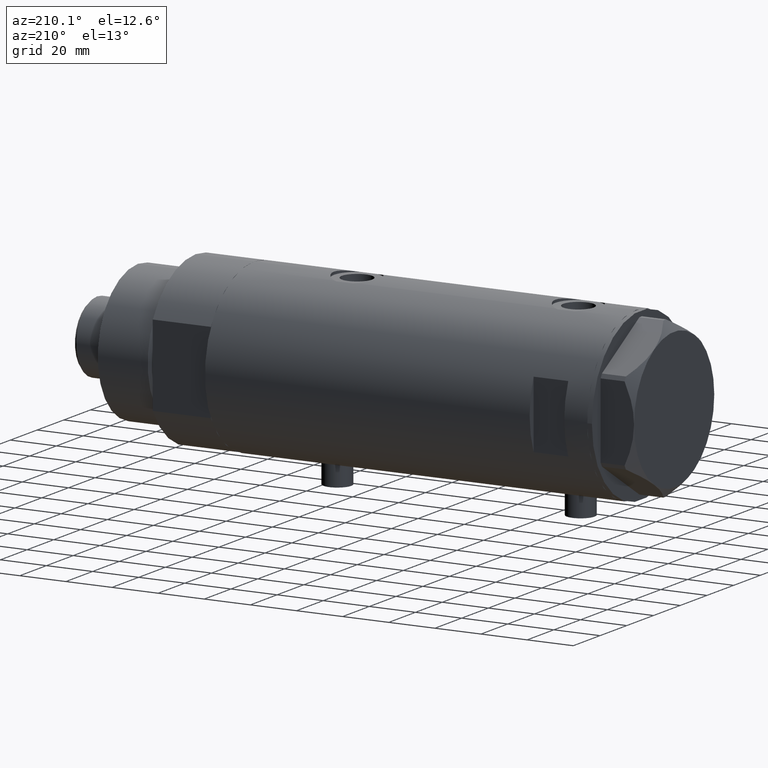
[diagram: clean part render]
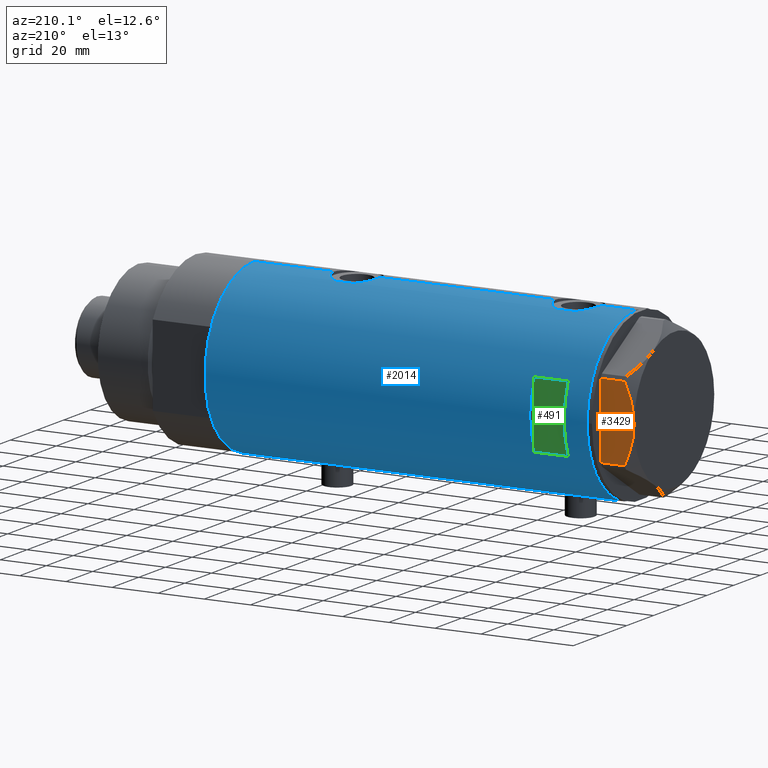
[diagram: same view with three faces highlighted in distinct colors, each labeled with its STEP entity id]
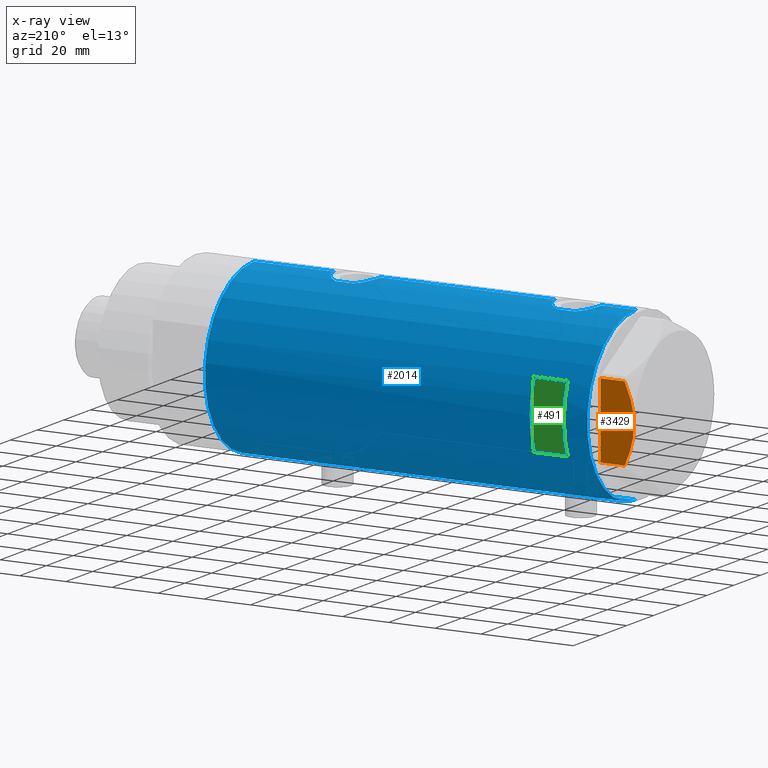
[diagram: x-ray of the same camera — body ghosted, the three highlighted faces saturated]
A machine part, auxiliary view with three faces highlighted in distinct colors.
The next image is the same camera in x-ray (body ghosted, the three faces saturated) — at least one of them is partly hidden behind the body in this view.
Their STEP definitions:

[orange] entity #3429 — the highlighted planar face has unit normal (0, -1, -0).
#36 = EDGE_LOOP ( 'NONE', ( #3139, #1048, #4568, #2104, #1712 ) ) ;
#46 = CARTESIAN_POINT ( 'NONE',  ( 30.00000000000000355, -17.32050807568877460, 0.000000000000000000 ) ) ;
#49 = CARTESIAN_POINT ( 'NONE',  ( 29.99999999999998579, 9.671229349009047738, 13.00645148086949554 ) ) ;
#133 = CARTESIAN_POINT ( 'NONE',  ( 29.99999999999999289, 13.63320717147166761, 11.55272916346385692 ) ) ;
#153 = B_SPLINE_CURVE_WITH_KNOTS ( 'NONE', 3,
 ( #1748, #2171, #2479, #1329, #3233, #2453, #4313, #2148, #1014, #2504 ),
 .UNSPECIFIED., .F., .F.,
 ( 4, 2, 2, 2, 4 ),
 ( 0.04501738275285961655, 0.04922240792374714402, 0.05132492050919090776, 0.05342743309463467843, 0.06183748343640974032 ),
 .UNSPECIFIED. ) ;
#225 = FACE_OUTER_BOUND ( 'NONE', #36, .T. ) ;
#272 = CARTESIAN_POINT ( 'NONE',  ( 30.00000000000000000, 15.56759648729806145, 10.70591879357994003 ) ) ;
#399 = B_SPLINE_CURVE_WITH_KNOTS ( 'NONE', 3,
 ( #2719, #4159, #4179, #1939, #3459, #4533, #1246, #49, #1562, #3053, #133, #4142, #272, #599 ),
 .UNSPECIFIED., .F., .F.,
 ( 4, 2, 2, 2, 2, 2, 4 ),
 ( 0.06183748343640974032, 0.06393495742991756048, 0.06603243142342538063, 0.07022737941044103482, 0.07442232739745667514, 0.07651980139096450917, 0.07861727538447232932 ),
 .UNSPECIFIED. ) ;
#517 = CARTESIAN_POINT ( 'NONE',  ( 29.99999999999999289, 16.20050807568875584, 14.50000000000000000 ) ) ;
#599 = CARTESIAN_POINT ( 'NONE',  ( 29.99999999999999289, 16.20050807568875229, 10.40518423703605322 ) ) ;
#962 = CARTESIAN_POINT ( 'NONE',  ( 29.99999999999999289, 16.20050807568875584, 0.000000000000000000 ) ) ;
#998 = CARTESIAN_POINT ( 'NONE',  ( 30.00000000000000355, -16.20050807568876294, 14.50000000000000000 ) ) ;
#1001 = EDGE_CURVE ( 'NONE', #2081, #1033, #1538, .T. ) ;
#1014 = CARTESIAN_POINT ( 'NONE',  ( 30.00000000000000000, -2.830925467268480933, 14.50000000000000355 ) ) ;
#1033 = VERTEX_POINT ( 'NONE', #1985 ) ;
#1037 = EDGE_CURVE ( 'NONE', #3299, #1033, #399, .T. ) ;
#1048 = ORIENTED_EDGE ( 'NONE', *, *, #4134, .T. ) ;
#1246 = CARTESIAN_POINT ( 'NONE',  ( 29.99999999999999645, 6.973771051792334141, 13.72753822183687866 ) ) ;
#1329 = CARTESIAN_POINT ( 'NONE',  ( 29.99999999999999645, -11.66725319103953495, 12.31690447555093115 ) ) ;
#1538 = LINE ( 'NONE', #517, #4261 ) ;
#1562 = CARTESIAN_POINT ( 'NONE',  ( 29.99999999999998579, 11.00230860792645871, 12.56933207488872206 ) ) ;
#1696 = DIRECTION ( 'NONE',  ( -1.000000000000000000, -3.004629197474318556E-16, 0.000000000000000000 ) ) ;
#1712 = ORIENTED_EDGE ( 'NONE', *, *, #1037, .F. ) ;
#1748 = CARTESIAN_POINT ( 'NONE',  ( 30.00000000000000355, -16.20050807568876650, 10.40518423703603368 ) ) ;
#1827 = VERTEX_POINT ( 'NONE', #3179 ) ;
#1939 = CARTESIAN_POINT ( 'NONE',  ( 29.99999999999998579, 2.827567415490793934, 14.37523681947611287 ) ) ;
#1985 = CARTESIAN_POINT ( 'NONE',  ( 29.99999999999999289, 16.20050807568875229, 10.40518423703605322 ) ) ;
#2009 = DIRECTION ( 'NONE',  ( 0.000000000000000000, 0.000000000000000000, 1.000000000000000000 ) ) ;
#2069 = CARTESIAN_POINT ( 'NONE',  ( 30.00000000000000355, -17.32050807568877460, 14.50000000000000000 ) ) ;
#2081 = VERTEX_POINT ( 'NONE', #962 ) ;
#2104 = ORIENTED_EDGE ( 'NONE', *, *, #1001, .T. ) ;
#2109 = EDGE_CURVE ( 'NONE', #4161, #3299, #153, .T. ) ;
#2148 = CARTESIAN_POINT ( 'NONE',  ( 30.00000000000000000, -5.593935073701695515, 14.09487059093540751 ) ) ;
#2171 = CARTESIAN_POINT ( 'NONE',  ( 29.99999999999999645, -14.93680064777130845, 11.00564802993686619 ) ) ;
#2453 = CARTESIAN_POINT ( 'NONE',  ( 29.99999999999999289, -9.655259153795981319, 12.99093232113973251 ) ) ;
#2479 = CARTESIAN_POINT ( 'NONE',  ( 30.00000000000000355, -13.64854889245357761, 11.56384586935411107 ) ) ;
#2504 = CARTESIAN_POINT ( 'NONE',  ( 30.00000000000000000, 9.013887592422954582E-15, 14.50000000000000000 ) ) ;
#2671 = LINE ( 'NONE', #46, #4122 ) ;
#2719 = CARTESIAN_POINT ( 'NONE',  ( 30.00000000000000000, 9.013887592422954582E-15, 14.50000000000000000 ) ) ;
#3051 = DIRECTION ( 'NONE',  ( -3.004629197474318063E-16, 1.000000000000000000, 0.000000000000000000 ) ) ;
#3053 = CARTESIAN_POINT ( 'NONE',  ( 29.99999999999999289, 12.97715359595205520, 11.81918444541430979 ) ) ;
#3058 = AXIS2_PLACEMENT_3D ( 'NONE', #2069, #1696, #4541 ) ;
#3139 = ORIENTED_EDGE ( 'NONE', *, *, #2109, .F. ) ;
#3179 = CARTESIAN_POINT ( 'NONE',  ( 30.00000000000000355, -16.20050807568876294, 0.000000000000000000 ) ) ;
#3233 = CARTESIAN_POINT ( 'NONE',  ( 30.00000000000000355, -10.99748736931233672, 12.55407623651775140 ) ) ;
#3240 = LINE ( 'NONE', #998, #3367 ) ;
#3299 = VERTEX_POINT ( 'NONE', #4148 ) ;
#3367 = VECTOR ( 'NONE', #3598, 1000.000000000000000 ) ;
#3429 = ADVANCED_FACE ( 'NONE', ( #225 ), #4587, .F. ) ;
#3459 = CARTESIAN_POINT ( 'NONE',  ( 29.99999999999999645, 3.526431665117132574, 14.30125973663612982 ) ) ;
#3598 = DIRECTION ( 'NONE',  ( 0.000000000000000000, 0.000000000000000000, -1.000000000000000000 ) ) ;
#4001 = CARTESIAN_POINT ( 'NONE',  ( 30.00000000000000355, -16.20050807568876650, 10.40518423703603368 ) ) ;
#4016 = EDGE_CURVE ( 'NONE', #1827, #2081, #2671, .T. ) ;
#4122 = VECTOR ( 'NONE', #3051, 1000.000000000000000 ) ;
#4134 = EDGE_CURVE ( 'NONE', #4161, #1827, #3240, .T. ) ;
#4142 = CARTESIAN_POINT ( 'NONE',  ( 29.99999999999999645, 14.92797448277035066, 10.99622797424085796 ) ) ;
#4148 = CARTESIAN_POINT ( 'NONE',  ( 30.00000000000000000, 9.013887592422954582E-15, 14.50000000000000000 ) ) ;
#4159 = CARTESIAN_POINT ( 'NONE',  ( 29.99999999999999645, 0.7060353153488403422, 14.50000000000000355 ) ) ;
#4161 = VERTEX_POINT ( 'NONE', #4001 ) ;
#4179 = CARTESIAN_POINT ( 'NONE',  ( 30.00000000000000000, 1.418661615092703387, 14.47469700449902952 ) ) ;
#4261 = VECTOR ( 'NONE', #2009, 1000.000000000000000 ) ;
#4313 = CARTESIAN_POINT ( 'NONE',  ( 29.99999999999999645, -8.981118657900115210, 13.19130745470828892 ) ) ;
#4533 = CARTESIAN_POINT ( 'NONE',  ( 29.99999999999998934, 5.607365453019633961, 14.01139032121648320 ) ) ;
#4541 = DIRECTION ( 'NONE',  ( 3.004629197474318556E-16, -1.000000000000000000, 0.000000000000000000 ) ) ;
#4568 = ORIENTED_EDGE ( 'NONE', *, *, #4016, .T. ) ;
#4587 = PLANE ( 'NONE',  #3058 ) ;

[blue] entity #2014 — the highlighted cylindrical surface (partial cylindrical patch) has radius 36.5 mm, axis along (-1, -0, 0).
#3 = VERTEX_POINT ( 'NONE', #4292 ) ;
#15 = CARTESIAN_POINT ( 'NONE',  ( -36.39522946636254375, 2.769519034821240844, 53.29336076268729272 ) ) ;
#20 = CARTESIAN_POINT ( 'NONE',  ( 35.40502660484482789, 8.876998817796915020, 53.26901275928763368 ) ) ;
#73 = CARTESIAN_POINT ( 'NONE',  ( 14.49137674618942917, 33.50000000000000000, 57.89999999999999147 ) ) ;
#78 = LINE ( 'NONE', #1917, #2354 ) ;
#126 = CARTESIAN_POINT ( 'NONE',  ( 36.36225053217121683, 3.177096004138048713, 48.41483975524019456 ) ) ;
#131 = CARTESIAN_POINT ( 'NONE',  ( -36.16083474549354548, 4.969527450313382388, -50.41205319122751405 ) ) ;
#138 = CARTESIAN_POINT ( 'NONE',  ( 35.39804469700246869, 8.909380959553008239, 62.55053164482843187 ) ) ;
#141 = EDGE_CURVE ( 'NONE', #732, #4511, #143, .T. ) ;
#143 = LINE ( 'NONE', #4286, #1096 ) ;
#165 = CARTESIAN_POINT ( 'NONE',  ( -36.44628644024910358, 2.015372769639944828, -52.53028128013585984 ) ) ;
#176 = CARTESIAN_POINT ( 'NONE',  ( 36.41717583764487642, 2.469534783404759182, 67.59348011175673321 ) ) ;
#178 = VERTEX_POINT ( 'NONE', #2777 ) ;
#196 = CARTESIAN_POINT ( 'NONE',  ( -35.96805604460922012, 6.209309709790239218, -47.42112758268170580 ) ) ;
#215 = CARTESIAN_POINT ( 'NONE',  ( -36.40902375114222167, 2.582415566883932811, -52.29521691469690836 ) ) ;
#221 = CARTESIAN_POINT ( 'NONE',  ( 35.29999999999999716, 9.282241108697837362, 54.17978495245235138 ) ) ;
#224 = VERTEX_POINT ( 'NONE', #4473 ) ;
#228 = CARTESIAN_POINT ( 'NONE',  ( -36.50000000000000000, 4.469960816887838430E-15, -82.90000000000000568 ) ) ;
#237 = EDGE_CURVE ( 'NONE', #839, #3997, #4546, .T. ) ;
#278 = CARTESIAN_POINT ( 'NONE',  ( -36.16083474549355259, 4.969527450313370842, 55.08794680877250016 ) ) ;
#279 = ORIENTED_EDGE ( 'NONE', *, *, #1197, .T. ) ;
#298 = DIRECTION ( 'NONE',  ( 0.000000000000000000, 0.000000000000000000, 1.000000000000000000 ) ) ;
#302 = CARTESIAN_POINT ( 'NONE',  ( -36.50000000000000000, 4.469960816887838430E-15, 82.90000000000000568 ) ) ;
#308 = CARTESIAN_POINT ( 'NONE',  ( 14.49137674618942739, 33.50000000000000000, -82.90000000000000568 ) ) ;
#316 = CARTESIAN_POINT ( 'NONE',  ( -36.50000000000000000, 4.469960816887838430E-15, -82.90000000000000568 ) ) ;
#350 = CARTESIAN_POINT ( 'NONE',  ( -36.06690560274405044, 5.606949625760669242, 56.13114076041065914 ) ) ;
#379 = CARTESIAN_POINT ( 'NONE',  ( 36.26917563968162739, 4.104523505324179311, -47.22215988367477024 ) ) ;
#385 = B_SPLINE_CURVE_WITH_KNOTS ( 'NONE', 3,
 ( #2406, #3166, #2767, #3524, #1296, #2741, #3101, #4599, #877, #2337, #2810, #2007, #899, #4514, #2366, #922, #1631, #3881, #3832, #4250, #945, #2386, #513, #196, #2440, #3550, #536, #3913, #597, #3477, #131, #487, #4157, #2082, #3498, #3121, #3858, #215, #165, #2027, #1225, #2717, #1661 ),
 .UNSPECIFIED., .F., .F.,
 ( 4, 2, 2, 2, 2, 2, 2, 2, 1, 2, 2, 2, 2, 2, 2, 2, 2, 2, 2, 2, 2, 4 ),
 ( 7.251201204191552072E-19, 0.001223527801214152827, 0.001835291701821226964, 0.002447055602428301752, 0.003670583403642443086, 0.004894111204856584421, 0.006117639006070725756, 0.006729402906677795122, 0.007341166807284864489, 0.007952930707891932988, 0.008564694608499004089, 0.009788222409713161903, 0.01101175021092732145, 0.01223527801214148100, 0.01284704191274855904, 0.01345880581335564055, 0.01468233361456980184, 0.01590586141578396312, 0.01651762531639104289, 0.01712938921699812267, 0.01835291701821228222, 0.01957644481942644524 ),
 .UNSPECIFIED. ) ;
#393 = CARTESIAN_POINT ( 'NONE',  ( -36.40902375114222167, 2.582415566883931479, 53.20478308530312006 ) ) ;
#417 = ORIENTED_EDGE ( 'NONE', *, *, #3991, .F. ) ;
#457 = VERTEX_POINT ( 'NONE', #221 ) ;
#463 = CARTESIAN_POINT ( 'NONE',  ( 36.50000000000000000, 0.000000000000000000, 47.89999999999999858 ) ) ;
#474 = AXIS2_PLACEMENT_3D ( 'NONE', #4777, #2722, #1521 ) ;
#475 = CARTESIAN_POINT ( 'NONE',  ( 35.93435287561198521, 6.411571491280768420, -30.41011355077158029 ) ) ;
#477 = DIRECTION ( 'NONE',  ( 0.000000000000000000, 0.000000000000000000, 1.000000000000000000 ) ) ;
#484 = CIRCLE ( 'NONE', #735, 36.50000000000000000 ) ;
#487 = CARTESIAN_POINT ( 'NONE',  ( -36.19597718496778782, 4.710322426433910081, -50.72851610762017316 ) ) ;
#509 = CARTESIAN_POINT ( 'NONE',  ( 36.45853166336078743, 1.985123042546143690, 48.04837329582261418 ) ) ;
#513 = CARTESIAN_POINT ( 'NONE',  ( -35.96088929326157313, 6.250155299092693184, -47.00610494763245129 ) ) ;
#519 = VERTEX_POINT ( 'NONE', #637 ) ;
#536 = CARTESIAN_POINT ( 'NONE',  ( -36.05296344941215381, 5.695624845616832133, -49.18154856536755659 ) ) ;
#574 = DIRECTION ( 'NONE',  ( 0.000000000000000000, 0.000000000000000000, 1.000000000000000000 ) ) ;
#597 = CARTESIAN_POINT ( 'NONE',  ( -36.09643313249890895, 5.413601294342283765, -49.73007773391854869 ) ) ;
#628 = CARTESIAN_POINT ( 'NONE',  ( 0.000000000000000000, 0.000000000000000000, -82.90000000000000568 ) ) ;
#637 = CARTESIAN_POINT ( 'NONE',  ( 36.50000000000000000, 0.000000000000000000, 47.89999999999999858 ) ) ;
#639 = B_SPLINE_CURVE_WITH_KNOTS ( 'NONE', 3,
 ( #2939, #3658, #2534, #1864, #4376, #1392, #4058, #2576, #935, #3320, #730, #1463, #1817, #3338, #3300, #4029, #2213, #3633, #676, #4401, #3903, #4776, #3681, #1486, #2427, #2167, #2140, #350, #1111, #4705, #278, #1419, #2632, #2256, #3719, #772, #15, #393, #1893, #4432, #1137, #4080, #2755 ),
 .UNSPECIFIED., .F., .F.,
 ( 4, 2, 2, 2, 2, 2, 2, 2, 1, 2, 2, 2, 2, 2, 2, 2, 2, 2, 2, 2, 2, 4 ),
 ( 2.134326792795658191E-19, 0.001223527801214134613, 0.001835291701821197691, 0.002447055602428260986, 0.003670583403642388443, 0.004894111204856515032, 0.006117639006070642489, 0.006729402906677714458, 0.007341166807284786426, 0.007952930707891856660, 0.008564694608498929496, 0.009788222409713092514, 0.01101175021092725553, 0.01223527801214141682, 0.01284704191274850180, 0.01345880581335558331, 0.01468233361456974632, 0.01590586141578391108, 0.01651762531639099432, 0.01712938921699807757, 0.01835291701821224059, 0.01957644481942640707 ),
 .UNSPECIFIED. ) ;
#650 = VECTOR ( 'NONE', #298, 1000.000000000000000 ) ;
#663 = CARTESIAN_POINT ( 'NONE',  ( 35.39804469700248291, 8.909380959553011792, -33.44946835517156103 ) ) ;
#676 = CARTESIAN_POINT ( 'NONE',  ( -35.99700617875953412, 6.038972911021577517, 60.52333185798319448 ) ) ;
#714 = EDGE_CURVE ( 'NONE', #3005, #1894, #3304, .T. ) ;
#729 = CARTESIAN_POINT ( 'NONE',  ( 0.000000000000000000, 0.000000000000000000, 82.90000000000000568 ) ) ;
#730 = CARTESIAN_POINT ( 'NONE',  ( -36.26643311080165688, 4.132772529026629726, 63.60619405269881099 ) ) ;
#732 = VERTEX_POINT ( 'NONE', #1448 ) ;
#735 = AXIS2_PLACEMENT_3D ( 'NONE', #628, #2017, #2418 ) ;
#741 = EDGE_LOOP ( 'NONE', ( #3049, #1211, #4166, #2124, #1945, #279, #4540, #4312, #2098, #3476, #1401, #4108, #2733, #990, #1283, #3358 ) ) ;
#751 = EDGE_CURVE ( 'NONE', #2902, #1022, #2219, .T. ) ;
#772 = CARTESIAN_POINT ( 'NONE',  ( -36.36587679577596077, 3.131448301962862057, 53.48717534426381803 ) ) ;
#780 = CARTESIAN_POINT ( 'NONE',  ( 36.18948008481302026, 4.772042575486204363, -46.90177631243157919 ) ) ;
#799 = DIRECTION ( 'NONE',  ( 0.000000000000000000, 0.000000000000000000, 1.000000000000000000 ) ) ;
#823 = CARTESIAN_POINT ( 'NONE',  ( 36.45954139109321801, 1.735915671103596125, 67.75136781147011789 ) ) ;
#839 = VERTEX_POINT ( 'NONE', #1814 ) ;
#845 = DIRECTION ( 'NONE',  ( 1.000000000000000000, 0.000000000000000000, 0.000000000000000000 ) ) ;
#860 = CARTESIAN_POINT ( 'NONE',  ( 35.72794581931695745, 7.469526493268204170, 64.55339796728263480 ) ) ;
#862 = CARTESIAN_POINT ( 'NONE',  ( 35.83170458557578542, 6.955065627744200007, -30.91058328087535401 ) ) ;
#877 = CARTESIAN_POINT ( 'NONE',  ( -36.36688032967139605, 3.133094607697487266, -41.17663567362491506 ) ) ;
#899 = CARTESIAN_POINT ( 'NONE',  ( -36.16126303108063667, 4.966520032693304998, -42.78358772254716058 ) ) ;
#914 = CARTESIAN_POINT ( 'NONE',  ( 35.59366931936805400, 8.089554397885871495, -43.99927319087814936 ) ) ;
#922 = CARTESIAN_POINT ( 'NONE',  ( -36.06675137892952421, 5.607935153446982568, -43.83318173991241906 ) ) ;
#935 = CARTESIAN_POINT ( 'NONE',  ( -36.36688032967139605, 3.133094607697478828, 64.32336432637509915 ) ) ;
#945 = CARTESIAN_POINT ( 'NONE',  ( -35.96793274302673638, 6.210029014836893069, -45.78305762320682248 ) ) ;
#990 = ORIENTED_EDGE ( 'NONE', *, *, #714, .T. ) ;
#1022 = VERTEX_POINT ( 'NONE', #3765 ) ;
#1096 = VECTOR ( 'NONE', #2417, 1000.000000000000000 ) ;
#1111 = CARTESIAN_POINT ( 'NONE',  ( -36.09643313249889474, 5.413601294342269554, 55.76992226608147973 ) ) ;
#1137 = CARTESIAN_POINT ( 'NONE',  ( -36.49292802938586533, 0.8230716655928878023, 52.69093061246486798 ) ) ;
#1197 = EDGE_CURVE ( 'NONE', #4440, #1421, #1405, .T. ) ;
#1211 = ORIENTED_EDGE ( 'NONE', *, *, #141, .T. ) ;
#1219 = DIRECTION ( 'NONE',  ( 0.000000000000000000, 0.000000000000000000, 1.000000000000000000 ) ) ;
#1220 = CARTESIAN_POINT ( 'NONE',  ( 36.49999999999999289, 1.005842003469123558, 47.89999999999999147 ) ) ;
#1225 = CARTESIAN_POINT ( 'NONE',  ( -36.49292802938587243, 0.8230716655928884684, -52.80906938753516044 ) ) ;
#1241 = CARTESIAN_POINT ( 'NONE',  ( 36.50000000000000000, 0.000000000000000000, -82.90000000000000568 ) ) ;
#1283 = ORIENTED_EDGE ( 'NONE', *, *, #1989, .F. ) ;
#1296 = CARTESIAN_POINT ( 'NONE',  ( -36.46462099658057099, 1.618684470865508596, -40.55975602975155425 ) ) ;
#1306 = CARTESIAN_POINT ( 'NONE',  ( 36.00287854058830561, 6.017835360303004144, -46.10188117181726142 ) ) ;
#1307 = CARTESIAN_POINT ( 'NONE',  ( 36.50000000000000000, 0.000000000000000000, 82.90000000000000568 ) ) ;
#1390 = CARTESIAN_POINT ( 'NONE',  ( 36.50000000000000000, 4.344604608721388599E-19, 67.90000000000000568 ) ) ;
#1392 = CARTESIAN_POINT ( 'NONE',  ( -36.44504802628534890, 2.011764947064734077, 64.82093644908518115 ) ) ;
#1401 = ORIENTED_EDGE ( 'NONE', *, *, #1930, .F. ) ;
#1405 = LINE ( 'NONE', #316, #3198 ) ;
#1419 = CARTESIAN_POINT ( 'NONE',  ( -36.19597718496778072, 4.710322426433902088, 54.77148389237986237 ) ) ;
#1421 = VERTEX_POINT ( 'NONE', #302 ) ;
#1446 = EDGE_CURVE ( 'NONE', #4440, #3, #639, .T. ) ;
#1448 = CARTESIAN_POINT ( 'NONE',  ( -36.50000000000000000, 4.469960816887838430E-15, -82.90000000000000568 ) ) ;
#1463 = CARTESIAN_POINT ( 'NONE',  ( -36.19624103943462501, 4.708090268046841942, 63.03061221446136386 ) ) ;
#1486 = CARTESIAN_POINT ( 'NONE',  ( -35.96805604460922012, 6.209309709790225007, 58.07887241731829420 ) ) ;
#1497 = EDGE_CURVE ( 'NONE', #4448, #3, #4588, .T. ) ;
#1509 = LINE ( 'NONE', #4466, #2831 ) ;
#1521 = DIRECTION ( 'NONE',  ( 1.000000000000000000, 1.776356839400250465E-15, 0.000000000000000000 ) ) ;
#1528 = B_SPLINE_CURVE_WITH_KNOTS ( 'NONE', 3,
 ( #3975, #663, #2155, #2727, #3089, #3391, #862, #475, #4085, #4103, #1576, #2999, #2348, #4479, #3817, #3790, #2309, #1545, #3726, #3750 ),
 .UNSPECIFIED., .F., .F.,
 ( 4, 2, 2, 2, 2, 2, 2, 2, 2, 4 ),
 ( 0.000000000000000000, 0.002977391289382820029, 0.003721739111728531758, 0.004466086934074251294, 0.005954782578765692100, 0.007443478223457132038, 0.008932173868148571977, 0.009676521690494288910, 0.01042086951284000758, 0.01190956515753144491 ),
 .UNSPECIFIED. ) ;
#1532 = CARTESIAN_POINT ( 'NONE',  ( 36.29420020483470921, 3.877527130731371230, 48.67901025599706344 ) ) ;
#1535 = VERTEX_POINT ( 'NONE', #1307 ) ;
#1545 = CARTESIAN_POINT ( 'NONE',  ( 36.48988646280794512, 0.9921857666168116818, -28.13671884865573602 ) ) ;
#1569 = CARTESIAN_POINT ( 'NONE',  ( 35.69321149401850590, 7.633476302278302761, 64.36463072166442601 ) ) ;
#1576 = CARTESIAN_POINT ( 'NONE',  ( 36.18937351723702989, 4.773052864917642246, -29.29864006881156513 ) ) ;
#1590 = CARTESIAN_POINT ( 'NONE',  ( 14.49137674618942739, 33.50000000000000000, 72.89999999999999147 ) ) ;
#1616 = CARTESIAN_POINT ( 'NONE',  ( 35.29999999999999716, 9.282241108697837362, 61.62021504754764578 ) ) ;
#1631 = CARTESIAN_POINT ( 'NONE',  ( -36.03936508729894683, 5.782103729777510637, -44.20129467396203893 ) ) ;
#1643 = VECTOR ( 'NONE', #4477, 1000.000000000000000 ) ;
#1646 = FACE_OUTER_BOUND ( 'NONE', #741, .T. ) ;
#1659 = CARTESIAN_POINT ( 'NONE',  ( 35.29999999999999716, 9.282241108697837362, 61.62021504754764578 ) ) ;
#1661 = CARTESIAN_POINT ( 'NONE',  ( -36.50000000000000000, 4.469960493366092827E-15, -52.85000000000000853 ) ) ;
#1669 = VERTEX_POINT ( 'NONE', #3314 ) ;
#1670 = LINE ( 'NONE', #2372, #3360 ) ;
#1684 = ORIENTED_EDGE ( 'NONE', *, *, #237, .F. ) ;
#1692 = EDGE_CURVE ( 'NONE', #2902, #457, #1509, .T. ) ;
#1794 = CARTESIAN_POINT ( 'NONE',  ( 35.72860827204725354, 7.471059959301286746, 51.23474849525592134 ) ) ;
#1814 = CARTESIAN_POINT ( 'NONE',  ( -14.49137674618942739, 33.50000000000000000, 72.89999999999999147 ) ) ;
#1817 = CARTESIAN_POINT ( 'NONE',  ( -36.16126303108062956, 4.966520032693292563, 62.71641227745282521 ) ) ;
#1864 = CARTESIAN_POINT ( 'NONE',  ( -36.47290054070997911, 1.420408912806971014, 64.98986981660013384 ) ) ;
#1867 = DIRECTION ( 'NONE',  ( 0.000000000000000000, 4.625929269271492422E-15, 1.000000000000000000 ) ) ;
#1893 = CARTESIAN_POINT ( 'NONE',  ( -36.44628644024910358, 2.015372769639941275, 52.96971871986416858 ) ) ;
#1894 = VERTEX_POINT ( 'NONE', #4021 ) ;
#1917 = CARTESIAN_POINT ( 'NONE',  ( -14.49137674618942739, 33.50000000000000000, -82.90000000000000568 ) ) ;
#1930 = EDGE_CURVE ( 'NONE', #519, #457, #4311, .T. ) ;
#1945 = ORIENTED_EDGE ( 'NONE', *, *, #1446, .F. ) ;
#1979 = VECTOR ( 'NONE', #4715, 1000.000000000000000 ) ;
#1989 = EDGE_CURVE ( 'NONE', #178, #1894, #3081, .T. ) ;
#2007 = CARTESIAN_POINT ( 'NONE',  ( -36.19624103943463211, 4.708090268046854376, -42.46938778553861482 ) ) ;
#2014 = ADVANCED_FACE ( 'NONE', ( #3413, #1646 ), #3067, .T. ) ;
#2017 = DIRECTION ( 'NONE',  ( 0.000000000000000000, 0.000000000000000000, 1.000000000000000000 ) ) ;
#2019 = CARTESIAN_POINT ( 'NONE',  ( 35.93456089024233790, 6.410413305453381838, -45.79085963204146026 ) ) ;
#2027 = CARTESIAN_POINT ( 'NONE',  ( -36.46598788992681506, 1.625721481788706013, -52.64872046713838216 ) ) ;
#2082 = CARTESIAN_POINT ( 'NONE',  ( -36.30181775639988473, 3.813582387016784203, -51.56836057574439280 ) ) ;
#2098 = ORIENTED_EDGE ( 'NONE', *, *, #751, .F. ) ;
#2124 = ORIENTED_EDGE ( 'NONE', *, *, #1497, .T. ) ;
#2140 = CARTESIAN_POINT ( 'NONE',  ( -36.05296344941216091, 5.695624845616822363, 56.31845143463244341 ) ) ;
#2155 = CARTESIAN_POINT ( 'NONE',  ( 35.52347503888660185, 8.410566959990466884, -32.60046032740658006 ) ) ;
#2167 = CARTESIAN_POINT ( 'NONE',  ( -36.01524716445113228, 5.931039972055507370, 56.88669268135342350 ) ) ;
#2213 = CARTESIAN_POINT ( 'NONE',  ( -36.03936508729894683, 5.782103729777503531, 61.29870532603795397 ) ) ;
#2219 = B_SPLINE_CURVE_WITH_KNOTS ( 'NONE', 3,
 ( #1616, #138, #3438, #1569, #860, #3407, #2322, #3865, #4538, #3106, #4519, #3506, #2747, #4189, #176, #2373, #823, #3153, #3481, #1390 ),
 .UNSPECIFIED., .F., .F.,
 ( 4, 2, 2, 2, 2, 2, 2, 2, 2, 4 ),
 ( 0.000000000000000000, 0.002977391289382842147, 0.003721739111728546070, 0.004466086934074248692, 0.005954782578765684294, 0.007443478223457119895, 0.008932173868148556364, 0.009676521690494280237, 0.01042086951284000584, 0.01190956515753144838 ),
 .UNSPECIFIED. ) ;
#2256 = CARTESIAN_POINT ( 'NONE',  ( -36.30181775639987762, 3.813582387016778430, 53.93163942425564983 ) ) ;
#2281 = CIRCLE ( 'NONE', #4038, 36.50000000000000000 ) ;
#2284 = CARTESIAN_POINT ( 'NONE',  ( 35.29999999999999716, 9.282241108697837362, -82.90000000000000568 ) ) ;
#2309 = CARTESIAN_POINT ( 'NONE',  ( 36.45954139109321090, 1.735915671103594571, -28.24863218852990698 ) ) ;
#2322 = CARTESIAN_POINT ( 'NONE',  ( 35.83170458557579963, 6.955065627744201784, 65.08941671912468507 ) ) ;
#2337 = CARTESIAN_POINT ( 'NONE',  ( -36.30200038006934449, 3.811959488093747961, -41.63027895163993009 ) ) ;
#2348 = CARTESIAN_POINT ( 'NONE',  ( 36.34264078466111414, 3.418717136061404815, -28.68950965959248123 ) ) ;
#2354 = VECTOR ( 'NONE', #3334, 1000.000000000000000 ) ;
#2355 = AXIS2_PLACEMENT_3D ( 'NONE', #729, #2474, #3657 ) ;
#2366 = CARTESIAN_POINT ( 'NONE',  ( -36.09617453667819831, 5.415318599347969553, -43.47293357327087193 ) ) ;
#2372 = CARTESIAN_POINT ( 'NONE',  ( 36.50000000000000000, 0.000000000000000000, -82.90000000000000568 ) ) ;
#2373 = CARTESIAN_POINT ( 'NONE',  ( 36.44688397185922213, 1.983417953489136965, 67.70449957648254724 ) ) ;
#2378 = VERTEX_POINT ( 'NONE', #73 ) ;
#2380 = CARTESIAN_POINT ( 'NONE',  ( 35.52737867031126484, 8.373910777960910323, 52.41139643282934202 ) ) ;
#2386 = CARTESIAN_POINT ( 'NONE',  ( -35.96094343308264740, 6.249843792257639308, -46.18912889655430121 ) ) ;
#2406 = CARTESIAN_POINT ( 'NONE',  ( -36.50000000000000000, 7.463603853851042361E-16, -40.34999999999999432 ) ) ;
#2417 = DIRECTION ( 'NONE',  ( 0.000000000000000000, 0.000000000000000000, 1.000000000000000000 ) ) ;
#2418 = DIRECTION ( 'NONE',  ( 1.000000000000000000, 0.000000000000000000, 0.000000000000000000 ) ) ;
#2424 = CARTESIAN_POINT ( 'NONE',  ( 35.79766710091576698, 7.135341284989892507, -45.12350520560902822 ) ) ;
#2427 = CARTESIAN_POINT ( 'NONE',  ( -35.99530513653992614, 6.049346314076198716, 57.27667416964168012 ) ) ;
#2431 = CARTESIAN_POINT ( 'NONE',  ( -36.50000000000000000, 4.469960493366092827E-15, -52.85000000000000853 ) ) ;
#2440 = CARTESIAN_POINT ( 'NONE',  ( -35.99530513653993324, 6.049346314076213815, -48.22332583035833409 ) ) ;
#2474 = DIRECTION ( 'NONE',  ( 0.000000000000000000, 0.000000000000000000, 1.000000000000000000 ) ) ;
#2494 = EDGE_CURVE ( 'NONE', #1535, #1421, #3583, .T. ) ;
#2534 = CARTESIAN_POINT ( 'NONE',  ( -36.49297130294515057, 0.8204796224394267368, 65.10931692217734224 ) ) ;
#2541 = CARTESIAN_POINT ( 'NONE',  ( 35.79766710091576698, 7.135341284989892507, 50.87649479439096467 ) ) ;
#2561 = CARTESIAN_POINT ( 'NONE',  ( 36.13018480315371761, 5.199168368309162958, 49.34353501791949981 ) ) ;
#2576 = CARTESIAN_POINT ( 'NONE',  ( -36.39638105034455862, 2.774378062517167454, 64.51543332699104383 ) ) ;
#2585 = CARTESIAN_POINT ( 'NONE',  ( 36.29420020483470921, 3.877527130731371230, -47.32098974400295077 ) ) ;
#2613 = CARTESIAN_POINT ( 'NONE',  ( 35.34894515018993388, 9.096104616284849342, 53.71535916533458987 ) ) ;
#2632 = CARTESIAN_POINT ( 'NONE',  ( -36.26695135241003953, 4.128455078791303023, 54.18962408355263705 ) ) ;
#2716 = ORIENTED_EDGE ( 'NONE', *, *, #2794, .F. ) ;
#2717 = CARTESIAN_POINT ( 'NONE',  ( -36.50000000000000711, 0.4083036190459276016, -52.85000000000001563 ) ) ;
#2722 = DIRECTION ( 'NONE',  ( -0.000000000000000000, -0.000000000000000000, -1.000000000000000000 ) ) ;
#2727 = CARTESIAN_POINT ( 'NONE',  ( 35.69321149401852011, 7.633476302278306314, -31.63536927833558110 ) ) ;
#2730 = CARTESIAN_POINT ( 'NONE',  ( 0.000000000000000000, 0.000000000000000000, -82.90000000000000568 ) ) ;
#2733 = ORIENTED_EDGE ( 'NONE', *, *, #3137, .F. ) ;
#2741 = CARTESIAN_POINT ( 'NONE',  ( -36.44504802628535600, 2.011764947064739406, -40.67906355091481174 ) ) ;
#2747 = CARTESIAN_POINT ( 'NONE',  ( 36.34264078466109993, 3.418717136061407480, 67.31049034040752588 ) ) ;
#2754 = CARTESIAN_POINT ( 'NONE',  ( 35.29999999999999716, 9.282241108697837362, -41.82021504754764862 ) ) ;
#2755 = CARTESIAN_POINT ( 'NONE',  ( -36.50000000000000000, 4.469960493369248271E-15, 52.65000000000001279 ) ) ;
#2762 = CARTESIAN_POINT ( 'NONE',  ( 36.26917563968162739, 4.104523505324179311, 48.77784011632527239 ) ) ;
#2767 = CARTESIAN_POINT ( 'NONE',  ( -36.49297130294515057, 0.8204796224394304005, -40.39068307782265066 ) ) ;
#2777 = CARTESIAN_POINT ( 'NONE',  ( 36.50000000000000000, 0.000000000000000000, -48.10000000000000142 ) ) ;
#2794 = EDGE_CURVE ( 'NONE', #2378, #1669, #2281, .T. ) ;
#2810 = CARTESIAN_POINT ( 'NONE',  ( -36.26643311080166399, 4.132772529026643049, -41.89380594730118190 ) ) ;
#2831 = VECTOR ( 'NONE', #4114, 1000.000000000000000 ) ;
#2902 = VERTEX_POINT ( 'NONE', #1659 ) ;
#2922 = CARTESIAN_POINT ( 'NONE',  ( 35.59366931936805400, 8.089554397885871495, 52.00072680912185774 ) ) ;
#2926 = VERTEX_POINT ( 'NONE', #1241 ) ;
#2939 = CARTESIAN_POINT ( 'NONE',  ( -36.50000000000000000, 2.196845629780489385E-16, 65.15000000000000568 ) ) ;
#2968 = CARTESIAN_POINT ( 'NONE',  ( 36.36225053217121683, 3.177096004138048713, -47.58516024475981965 ) ) ;
#2999 = CARTESIAN_POINT ( 'NONE',  ( 36.29611582693038940, 3.878758190381168092, -28.86955010900449992 ) ) ;
#3005 = VERTEX_POINT ( 'NONE', #4247 ) ;
#3023 = LINE ( 'NONE', #4522, #3893 ) ;
#3049 = ORIENTED_EDGE ( 'NONE', *, *, #3346, .T. ) ;
#3067 = CYLINDRICAL_SURFACE ( 'NONE', #3435, 36.50000000000000000 ) ;
#3081 = B_SPLINE_CURVE_WITH_KNOTS ( 'NONE', 3,
 ( #3773, #4105, #4414, #2968, #4065, #2585, #379, #780, #4785, #1306, #2019, #2424, #3468, #914, #3872, #4218, #3445, #2754 ),
 .UNSPECIFIED., .F., .F.,
 ( 4, 2, 2, 2, 2, 2, 2, 2, 4 ),
 ( 6.505213034913026604E-19, 0.002973648994175712851, 0.003717061242719640196, 0.004460473491263567541, 0.005947297988351423099, 0.007434122485439277790, 0.008920946982527131613, 0.01040777147961498630, 0.01189459597670284099 ),
 .UNSPECIFIED. ) ;
#3089 = CARTESIAN_POINT ( 'NONE',  ( 35.72794581931695035, 7.469526493268208611, -31.44660203271737586 ) ) ;
#3101 = CARTESIAN_POINT ( 'NONE',  ( -36.43371204571226940, 2.206934156026296723, -40.74902718329001772 ) ) ;
#3106 = CARTESIAN_POINT ( 'NONE',  ( 36.12877841835537396, 5.208882251161923271, 66.45053164790293465 ) ) ;
#3116 = CARTESIAN_POINT ( 'NONE',  ( 36.34070350304396868, 3.414301401755547083, 48.49763782624093267 ) ) ;
#3121 = CARTESIAN_POINT ( 'NONE',  ( -36.36587679577596077, 3.131448301962866054, -52.01282465573622460 ) ) ;
#3137 = EDGE_CURVE ( 'NONE', #3005, #224, #1528, .T. ) ;
#3153 = CARTESIAN_POINT ( 'NONE',  ( 36.48988646280793802, 0.9921857666168150125, 67.86328115134426753 ) ) ;
#3166 = CARTESIAN_POINT ( 'NONE',  ( -36.50000000000000000, 0.4137727629436737109, -40.35000000000000142 ) ) ;
#3198 = VECTOR ( 'NONE', #1219, 1000.000000000000000 ) ;
#3203 = DIRECTION ( 'NONE',  ( 0.000000000000000000, 0.000000000000000000, 1.000000000000000000 ) ) ;
#3298 = EDGE_CURVE ( 'NONE', #2926, #178, #3023, .T. ) ;
#3300 = CARTESIAN_POINT ( 'NONE',  ( -36.09617453667821962, 5.415318599347956230, 62.02706642672912807 ) ) ;
#3304 = LINE ( 'NONE', #2284, #1643 ) ;
#3314 = CARTESIAN_POINT ( 'NONE',  ( -14.49137674618942917, 33.50000000000000000, 57.89999999999999147 ) ) ;
#3320 = CARTESIAN_POINT ( 'NONE',  ( -36.30200038006935159, 3.811959488093736415, 63.86972104836005570 ) ) ;
#3334 = DIRECTION ( 'NONE',  ( 0.000000000000000000, 0.000000000000000000, 1.000000000000000000 ) ) ;
#3338 = CARTESIAN_POINT ( 'NONE',  ( -36.11199073531170001, 5.309184630646985426, 62.20412840766834250 ) ) ;
#3346 = EDGE_CURVE ( 'NONE', #2926, #732, #484, .T. ) ;
#3358 = ORIENTED_EDGE ( 'NONE', *, *, #3298, .F. ) ;
#3360 = VECTOR ( 'NONE', #574, 1000.000000000000000 ) ;
#3391 = CARTESIAN_POINT ( 'NONE',  ( 35.79715675463676661, 7.130463293899343746, -31.08444415894004109 ) ) ;
#3407 = CARTESIAN_POINT ( 'NONE',  ( 35.79715675463678082, 7.130463293899336641, 64.91555584105995536 ) ) ;
#3413 = FACE_BOUND ( 'NONE', #3536, .T. ) ;
#3435 = AXIS2_PLACEMENT_3D ( 'NONE', #2730, #477, #845 ) ;
#3438 = CARTESIAN_POINT ( 'NONE',  ( 35.52347503888662317, 8.410566959990465108, 63.39953967259342704 ) ) ;
#3445 = CARTESIAN_POINT ( 'NONE',  ( 35.34894515018993388, 9.096104616284849342, -42.28464083466543144 ) ) ;
#3468 = CARTESIAN_POINT ( 'NONE',  ( 35.72860827204725354, 7.471059959301286746, -44.76525150474409998 ) ) ;
#3476 = ORIENTED_EDGE ( 'NONE', *, *, #1692, .T. ) ;
#3477 = CARTESIAN_POINT ( 'NONE',  ( -36.11206433103227198, 5.308658295084047296, -49.90484648040978755 ) ) ;
#3481 = CARTESIAN_POINT ( 'NONE',  ( 36.49999999999999289, 0.4961820988516169595, 67.89999999999997726 ) ) ;
#3498 = CARTESIAN_POINT ( 'NONE',  ( -36.35033317675381426, 3.306376218664579536, -51.90770719416052970 ) ) ;
#3506 = CARTESIAN_POINT ( 'NONE',  ( 36.29611582693039651, 3.878758190381167648, 67.13044989099549298 ) ) ;
#3524 = CARTESIAN_POINT ( 'NONE',  ( -36.47290054070997911, 1.420408912806975898, -40.51013018339984484 ) ) ;
#3536 = EDGE_LOOP ( 'NONE', ( #417, #2716, #3605, #1684 ) ) ;
#3550 = CARTESIAN_POINT ( 'NONE',  ( -36.01524716445113938, 5.931039972055519804, -48.61330731864658361 ) ) ;
#3583 = CIRCLE ( 'NONE', #2355, 36.50000000000000000 ) ;
#3605 = ORIENTED_EDGE ( 'NONE', *, *, #4579, .F. ) ;
#3616 = CARTESIAN_POINT ( 'NONE',  ( 35.93456089024233790, 6.410413305453381838, 50.20914036795854685 ) ) ;
#3633 = CARTESIAN_POINT ( 'NONE',  ( -36.01679413914727235, 5.919813138266318830, 60.91499691047037146 ) ) ;
#3653 = LINE ( 'NONE', #4375, #650 ) ;
#3657 = DIRECTION ( 'NONE',  ( 1.000000000000000000, 0.000000000000000000, 0.000000000000000000 ) ) ;
#3658 = CARTESIAN_POINT ( 'NONE',  ( -36.50000000000000000, 0.4137727629436733778, 65.15000000000000568 ) ) ;
#3681 = CARTESIAN_POINT ( 'NONE',  ( -35.96088929326158734, 6.250155299092678085, 58.49389505236757003 ) ) ;
#3703 = EDGE_CURVE ( 'NONE', #224, #519, #1670, .T. ) ;
#3704 = CARTESIAN_POINT ( 'NONE',  ( 35.29999999999999716, 9.282241108697837362, 54.17978495245235138 ) ) ;
#3719 = CARTESIAN_POINT ( 'NONE',  ( -36.35033317675380715, 3.306376218664574207, 53.59229280583950583 ) ) ;
#3720 = DIRECTION ( 'NONE',  ( 0.000000000000000000, 1.000000000000000000, -4.562560375171875891E-15 ) ) ;
#3726 = CARTESIAN_POINT ( 'NONE',  ( 36.50000000000000000, 0.4961820988516186803, -28.10000000000000142 ) ) ;
#3750 = CARTESIAN_POINT ( 'NONE',  ( 36.50000000000000000, 4.344611676915099379E-19, -28.10000000000000142 ) ) ;
#3765 = CARTESIAN_POINT ( 'NONE',  ( 36.50000000000000000, 4.344604608721388599E-19, 67.90000000000000568 ) ) ;
#3773 = CARTESIAN_POINT ( 'NONE',  ( 36.50000000000000000, 0.000000000000000000, -48.10000000000000142 ) ) ;
#3790 = CARTESIAN_POINT ( 'NONE',  ( 36.44688397185921502, 1.983417953489134744, -28.29550042351748829 ) ) ;
#3817 = CARTESIAN_POINT ( 'NONE',  ( 36.41717583764485511, 2.469534783404757405, -28.40651988824328456 ) ) ;
#3824 = CARTESIAN_POINT ( 'NONE',  ( -36.50000000000000000, 7.463603853851042361E-16, -40.34999999999999432 ) ) ;
#3832 = CARTESIAN_POINT ( 'NONE',  ( -35.99700617875954123, 6.038972911021593504, -44.97666814201680552 ) ) ;
#3839 = EDGE_CURVE ( 'NONE', #1022, #1535, #3653, .T. ) ;
#3858 = CARTESIAN_POINT ( 'NONE',  ( -36.39522946636255085, 2.769519034821246617, -52.20663923731272860 ) ) ;
#3865 = CARTESIAN_POINT ( 'NONE',  ( 35.93435287561198521, 6.411571491280764867, 65.58988644922843037 ) ) ;
#3872 = CARTESIAN_POINT ( 'NONE',  ( 35.52737867031126484, 8.373910777960910323, -43.58860356717065798 ) ) ;
#3881 = CARTESIAN_POINT ( 'NONE',  ( -36.01679413914727235, 5.919813138266332153, -44.58500308952962143 ) ) ;
#3893 = VECTOR ( 'NONE', #799, 1000.000000000000000 ) ;
#3903 = CARTESIAN_POINT ( 'NONE',  ( -35.96793274302675769, 6.210029014836877970, 59.71694237679319173 ) ) ;
#3913 = CARTESIAN_POINT ( 'NONE',  ( -36.06690560274405044, 5.606949625760679901, -49.36885923958933375 ) ) ;
#3940 = CARTESIAN_POINT ( 'NONE',  ( 0.000000000000000000, 0.000000000000000000, 57.90000000000014779 ) ) ;
#3975 = CARTESIAN_POINT ( 'NONE',  ( 35.29999999999999716, 9.282241108697837362, -34.37978495245235422 ) ) ;
#3991 = EDGE_CURVE ( 'NONE', #1669, #839, #78, .T. ) ;
#3997 = VERTEX_POINT ( 'NONE', #1590 ) ;
#4021 = CARTESIAN_POINT ( 'NONE',  ( 35.29999999999999716, 9.282241108697837362, -41.82021504754764862 ) ) ;
#4029 = CARTESIAN_POINT ( 'NONE',  ( -36.06675137892952421, 5.607935153446965693, 61.66681826008759515 ) ) ;
#4038 = AXIS2_PLACEMENT_3D ( 'NONE', #3940, #1867, #3720 ) ;
#4058 = CARTESIAN_POINT ( 'NONE',  ( -36.43371204571226230, 2.206934156026284732, 64.75097281670994676 ) ) ;
#4065 = CARTESIAN_POINT ( 'NONE',  ( 36.34070350304396868, 3.414301401755547083, -47.50236217375907444 ) ) ;
#4080 = CARTESIAN_POINT ( 'NONE',  ( -36.50000000000001421, 0.4083036190459299886, 52.65000000000002700 ) ) ;
#4085 = CARTESIAN_POINT ( 'NONE',  ( 36.00145998247696610, 6.026272765084661920, -30.10449611787613478 ) ) ;
#4103 = CARTESIAN_POINT ( 'NONE',  ( 36.12877841835538106, 5.208882251161926824, -29.54946835209708667 ) ) ;
#4105 = CARTESIAN_POINT ( 'NONE',  ( 36.49999999999999289, 1.005842003469123558, -48.09999999999999432 ) ) ;
#4108 = ORIENTED_EDGE ( 'NONE', *, *, #3703, .F. ) ;
#4114 = DIRECTION ( 'NONE',  ( -0.000000000000000000, -0.000000000000000000, -1.000000000000000000 ) ) ;
#4115 = EDGE_CURVE ( 'NONE', #4448, #4511, #385, .T. ) ;
#4157 = CARTESIAN_POINT ( 'NONE',  ( -36.26695135241004664, 4.128455078791307464, -51.31037591644739848 ) ) ;
#4166 = ORIENTED_EDGE ( 'NONE', *, *, #4115, .F. ) ;
#4189 = CARTESIAN_POINT ( 'NONE',  ( 36.40008489419981430, 2.709263960908035784, 67.52918104596393789 ) ) ;
#4199 = CARTESIAN_POINT ( 'NONE',  ( 36.00287854058830561, 6.017835360303004144, 49.89811882818275990 ) ) ;
#4218 = CARTESIAN_POINT ( 'NONE',  ( 35.40502660484482789, 8.876998817796915020, -42.73098724071236632 ) ) ;
#4245 = CARTESIAN_POINT ( 'NONE',  ( -36.50000000000000000, 2.196845629780489385E-16, 65.15000000000000568 ) ) ;
#4247 = CARTESIAN_POINT ( 'NONE',  ( 35.29999999999999716, 9.282241108697837362, -34.37978495245235422 ) ) ;
#4250 = CARTESIAN_POINT ( 'NONE',  ( -35.98846897517729815, 6.089479646546508640, -45.17765108453480849 ) ) ;
#4286 = CARTESIAN_POINT ( 'NONE',  ( -36.50000000000000000, 4.469960816887838430E-15, -82.90000000000000568 ) ) ;
#4292 = CARTESIAN_POINT ( 'NONE',  ( -36.50000000000000000, 4.469960493369248271E-15, 52.65000000000001279 ) ) ;
#4311 = B_SPLINE_CURVE_WITH_KNOTS ( 'NONE', 3,
 ( #463, #1220, #509, #126, #3116, #1532, #2762, #4668, #2561, #4199, #3616, #2541, #1794, #2922, #2380, #20, #2613, #3704 ),
 .UNSPECIFIED., .F., .F.,
 ( 4, 2, 2, 2, 2, 2, 2, 2, 4 ),
 ( 6.505213034913026604E-19, 0.002973648994175712851, 0.003717061242719640196, 0.004460473491263567541, 0.005947297988351423099, 0.007434122485439277790, 0.008920946982527131613, 0.01040777147961498630, 0.01189459597670284099 ),
 .UNSPECIFIED. ) ;
#4312 = ORIENTED_EDGE ( 'NONE', *, *, #3839, .F. ) ;
#4368 = LINE ( 'NONE', #308, #1979 ) ;
#4375 = CARTESIAN_POINT ( 'NONE',  ( 36.50000000000000000, 0.000000000000000000, -82.90000000000000568 ) ) ;
#4376 = CARTESIAN_POINT ( 'NONE',  ( -36.46462099658055678, 1.618684470865503489, 64.94024397024845996 ) ) ;
#4401 = CARTESIAN_POINT ( 'NONE',  ( -35.98846897517730525, 6.089479646546494429, 60.32234891546520572 ) ) ;
#4414 = CARTESIAN_POINT ( 'NONE',  ( 36.45853166336078743, 1.985123042546143690, -47.95162670417735740 ) ) ;
#4432 = CARTESIAN_POINT ( 'NONE',  ( -36.46598788992681506, 1.625721481788708456, 52.85127953286164626 ) ) ;
#4440 = VERTEX_POINT ( 'NONE', #4245 ) ;
#4448 = VERTEX_POINT ( 'NONE', #3824 ) ;
#4466 = CARTESIAN_POINT ( 'NONE',  ( 35.29999999999999716, 9.282241108697837362, -82.90000000000000568 ) ) ;
#4473 = CARTESIAN_POINT ( 'NONE',  ( 36.50000000000000000, 4.344611676915099379E-19, -28.10000000000000142 ) ) ;
#4477 = DIRECTION ( 'NONE',  ( -0.000000000000000000, -0.000000000000000000, -1.000000000000000000 ) ) ;
#4479 = CARTESIAN_POINT ( 'NONE',  ( 36.40008489419980720, 2.709263960908029123, -28.47081895403607632 ) ) ;
#4511 = VERTEX_POINT ( 'NONE', #2431 ) ;
#4514 = CARTESIAN_POINT ( 'NONE',  ( -36.11199073531169290, 5.309184630646996972, -43.29587159233165039 ) ) ;
#4519 = CARTESIAN_POINT ( 'NONE',  ( 36.18937351723702989, 4.773052864917642246, 66.70135993118843487 ) ) ;
#4522 = CARTESIAN_POINT ( 'NONE',  ( 36.50000000000000000, 0.000000000000000000, -82.90000000000000568 ) ) ;
#4538 = CARTESIAN_POINT ( 'NONE',  ( 36.00145998247697321, 6.026272765084660143, 65.89550388212386167 ) ) ;
#4540 = ORIENTED_EDGE ( 'NONE', *, *, #2494, .F. ) ;
#4546 = CIRCLE ( 'NONE', #474, 36.50000000000000000 ) ;
#4558 = VECTOR ( 'NONE', #3203, 1000.000000000000000 ) ;
#4579 = EDGE_CURVE ( 'NONE', #3997, #2378, #4368, .T. ) ;
#4588 = LINE ( 'NONE', #228, #4558 ) ;
#4599 = CARTESIAN_POINT ( 'NONE',  ( -36.39638105034455151, 2.774378062517180332, -40.98456667300897749 ) ) ;
#4668 = CARTESIAN_POINT ( 'NONE',  ( 36.18948008481302026, 4.772042575486204363, 49.09822368756843503 ) ) ;
#4705 = CARTESIAN_POINT ( 'NONE',  ( -36.11206433103227909, 5.308658295084034862, 55.59515351959023377 ) ) ;
#4715 = DIRECTION ( 'NONE',  ( -0.000000000000000000, -0.000000000000000000, -1.000000000000000000 ) ) ;
#4776 = CARTESIAN_POINT ( 'NONE',  ( -35.96094343308265451, 6.249843792257625097, 59.31087110344572011 ) ) ;
#4777 = CARTESIAN_POINT ( 'NONE',  ( 0.000000000000000000, 0.000000000000000000, 72.89999999999999147 ) ) ;
#4785 = CARTESIAN_POINT ( 'NONE',  ( 36.13018480315371761, 5.199168368309162958, -46.65646498208050730 ) ) ;

[green] entity #491 — the highlighted planar face has unit normal (0, -1, -0).
#47 = CARTESIAN_POINT ( 'NONE',  ( -36.50000000000000000, 33.50000000000000000, 72.89999999999999147 ) ) ;
#73 = CARTESIAN_POINT ( 'NONE',  ( 14.49137674618942917, 33.50000000000000000, 57.89999999999999147 ) ) ;
#78 = LINE ( 'NONE', #1917, #2354 ) ;
#87 = EDGE_CURVE ( 'NONE', #839, #3997, #3567, .T. ) ;
#306 = DIRECTION ( 'NONE',  ( 1.000000000000000000, -0.000000000000000000, -0.000000000000000000 ) ) ;
#308 = CARTESIAN_POINT ( 'NONE',  ( 14.49137674618942739, 33.50000000000000000, -82.90000000000000568 ) ) ;
#401 = EDGE_CURVE ( 'NONE', #1669, #2378, #4627, .T. ) ;
#491 = ADVANCED_FACE ( 'NONE', ( #1437 ), #515, .F. ) ;
#515 = PLANE ( 'NONE',  #1722 ) ;
#523 = ORIENTED_EDGE ( 'NONE', *, *, #87, .T. ) ;
#839 = VERTEX_POINT ( 'NONE', #1814 ) ;
#1437 = FACE_OUTER_BOUND ( 'NONE', #4745, .T. ) ;
#1590 = CARTESIAN_POINT ( 'NONE',  ( 14.49137674618942739, 33.50000000000000000, 72.89999999999999147 ) ) ;
#1669 = VERTEX_POINT ( 'NONE', #3314 ) ;
#1722 = AXIS2_PLACEMENT_3D ( 'NONE', #47, #1953, #4095 ) ;
#1814 = CARTESIAN_POINT ( 'NONE',  ( -14.49137674618942739, 33.50000000000000000, 72.89999999999999147 ) ) ;
#1917 = CARTESIAN_POINT ( 'NONE',  ( -14.49137674618942739, 33.50000000000000000, -82.90000000000000568 ) ) ;
#1953 = DIRECTION ( 'NONE',  ( 0.000000000000000000, -1.000000000000000000, -0.000000000000000000 ) ) ;
#1979 = VECTOR ( 'NONE', #4715, 1000.000000000000000 ) ;
#2075 = ORIENTED_EDGE ( 'NONE', *, *, #4579, .T. ) ;
#2354 = VECTOR ( 'NONE', #3334, 1000.000000000000000 ) ;
#2378 = VERTEX_POINT ( 'NONE', #73 ) ;
#2422 = ORIENTED_EDGE ( 'NONE', *, *, #401, .F. ) ;
#2743 = VECTOR ( 'NONE', #2792, 1000.000000000000000 ) ;
#2792 = DIRECTION ( 'NONE',  ( 1.000000000000000000, -0.000000000000000000, -0.000000000000000000 ) ) ;
#2844 = CARTESIAN_POINT ( 'NONE',  ( -36.50000000000000000, 33.50000000000000000, 57.89999999999999147 ) ) ;
#3314 = CARTESIAN_POINT ( 'NONE',  ( -14.49137674618942917, 33.50000000000000000, 57.89999999999999147 ) ) ;
#3334 = DIRECTION ( 'NONE',  ( 0.000000000000000000, 0.000000000000000000, 1.000000000000000000 ) ) ;
#3415 = VECTOR ( 'NONE', #306, 1000.000000000000000 ) ;
#3567 = LINE ( 'NONE', #3925, #3415 ) ;
#3925 = CARTESIAN_POINT ( 'NONE',  ( -36.50000000000000000, 33.50000000000000000, 72.89999999999999147 ) ) ;
#3991 = EDGE_CURVE ( 'NONE', #1669, #839, #78, .T. ) ;
#3997 = VERTEX_POINT ( 'NONE', #1590 ) ;
#4093 = ORIENTED_EDGE ( 'NONE', *, *, #3991, .T. ) ;
#4095 = DIRECTION ( 'NONE',  ( 0.000000000000000000, 0.000000000000000000, -1.000000000000000000 ) ) ;
#4368 = LINE ( 'NONE', #308, #1979 ) ;
#4579 = EDGE_CURVE ( 'NONE', #3997, #2378, #4368, .T. ) ;
#4627 = LINE ( 'NONE', #2844, #2743 ) ;
#4715 = DIRECTION ( 'NONE',  ( -0.000000000000000000, -0.000000000000000000, -1.000000000000000000 ) ) ;
#4745 = EDGE_LOOP ( 'NONE', ( #2075, #2422, #4093, #523 ) ) ;